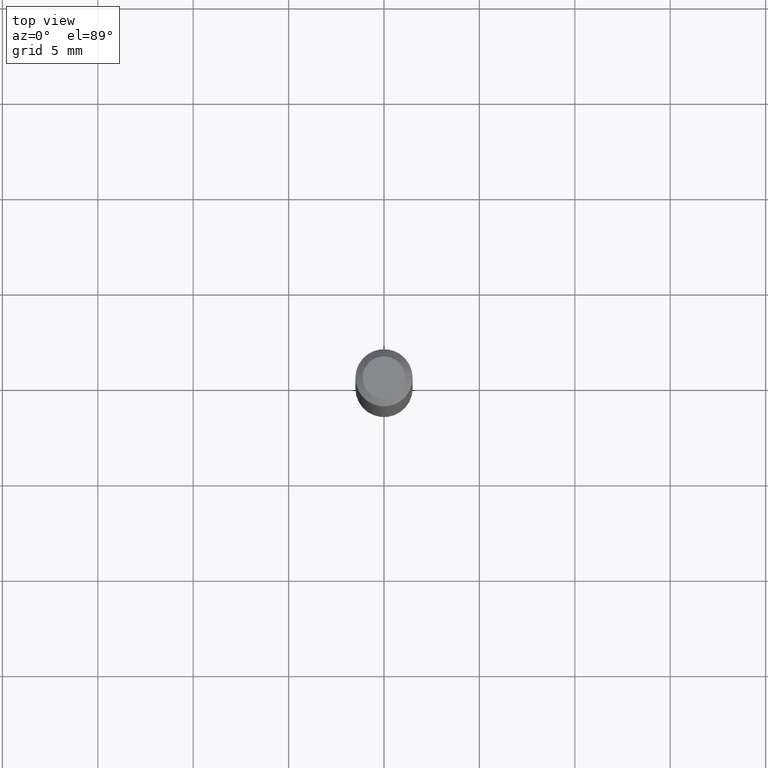
[diagram: clean part render]
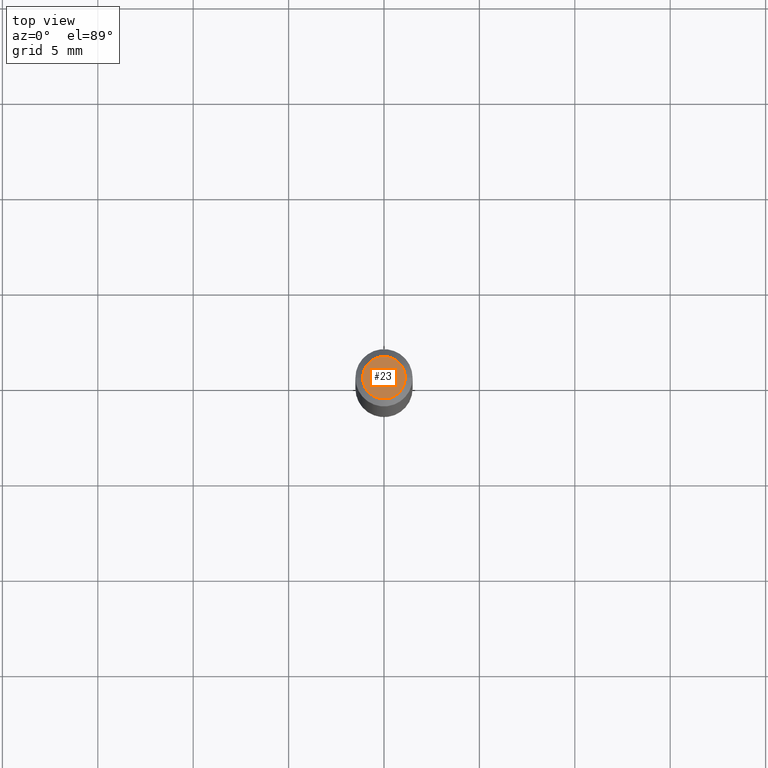
[diagram: same view with one face highlighted and labeled with its STEP entity id]
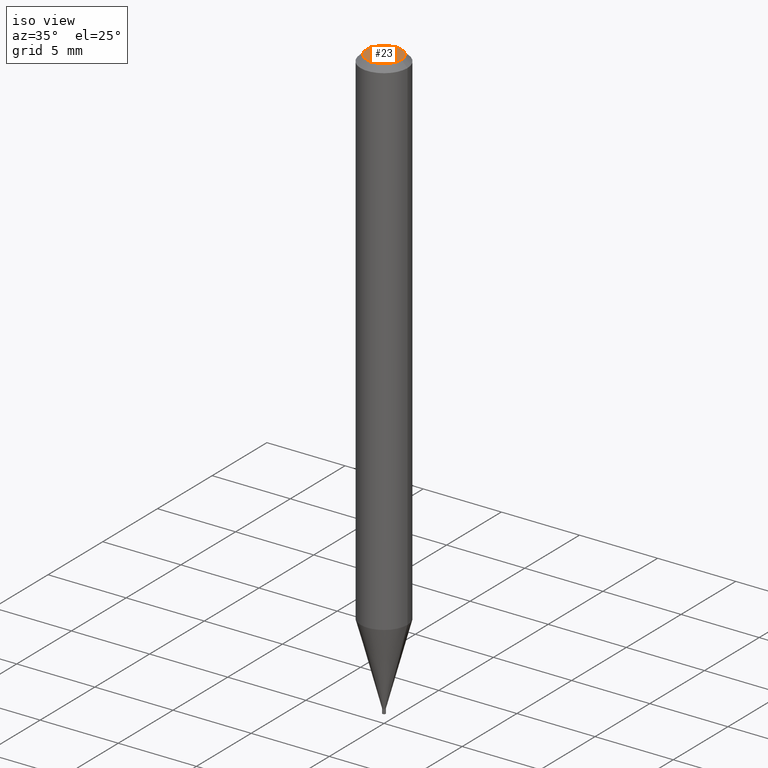
[diagram: same view with one face highlighted and labeled with its STEP entity id]
A machine part, top view. The second image highlights one B-rep face of the part: STEP entity #23.
A second angle (iso view) of the same face is appended — the face is thin or edge-on in the first view.
In plain terms, the highlighted planar face has unit normal (0, -0, -1).
Its self-contained STEP definition (entity closure, byte-faithful):
#20 = EDGE_LOOP ( 'NONE', ( #415, #358 ) ) ;
#23 = ADVANCED_FACE ( 'NONE', ( #320 ), #149, .F. ) ;
#46 = VERTEX_POINT ( 'NONE', #194 ) ;
#68 = EDGE_CURVE ( 'NONE', #46, #195, #226, .T. ) ;
#108 = DIRECTION ( 'NONE',  ( 1.000000000000000000, -6.982962677686265922E-15, 4.957392940945096353E-29 ) ) ;
#116 = DIRECTION ( 'NONE',  ( -2.445468806185136597E-29, 3.491481338843145583E-15, 1.000000000000000000 ) ) ;
#130 = DIRECTION ( 'NONE',  ( 2.438088387897960049E-29, -3.491481338843145188E-15, -1.000000000000000000 ) ) ;
#149 = PLANE ( 'NONE',  #286 ) ;
#159 = CIRCLE ( 'NONE', #279, 0.04404999999999999888 ) ;
#188 = DIRECTION ( 'NONE',  ( -2.445468806185136597E-29, 3.491481338843145583E-15, 1.000000000000000000 ) ) ;
#191 = CARTESIAN_POINT ( 'NONE',  ( -0.04404999999999999888, 3.337856159934044986E-16, 6.005310506687738188E-16 ) ) ;
#194 = CARTESIAN_POINT ( 'NONE',  ( 0.04404999999999999888, -3.798447818264450218E-16, 6.005310506687784534E-16 ) ) ;
#195 = VERTEX_POINT ( 'NONE', #191 ) ;
#199 = EDGE_CURVE ( 'NONE', #195, #46, #159, .T. ) ;
#226 = CIRCLE ( 'NONE', #434, 0.04404999999999999888 ) ;
#261 = DIRECTION ( 'NONE',  ( -1.000000000000000000, 6.982962677686265922E-15, -4.876176775795935793E-29 ) ) ;
#279 = AXIS2_PLACEMENT_3D ( 'NONE', #309, #188, #336 ) ;
#286 = AXIS2_PLACEMENT_3D ( 'NONE', #307, #130, #261 ) ;
#307 = CARTESIAN_POINT ( 'NONE',  ( 3.075995059520799729E-16, 0.04404999999999999888, 1.464657723583474653E-16 ) ) ;
#309 = CARTESIAN_POINT ( 'NONE',  ( -1.468579951556077338E-44, 2.096742956805899036E-30, 6.005310506687760868E-16 ) ) ;
#320 = FACE_OUTER_BOUND ( 'NONE', #20, .T. ) ;
#336 = DIRECTION ( 'NONE',  ( 1.000000000000000000, -6.982962677686265922E-15, 4.957392940945096353E-29 ) ) ;
#358 = ORIENTED_EDGE ( 'NONE', *, *, #68, .T. ) ;
#386 = CARTESIAN_POINT ( 'NONE',  ( -1.468579951556077338E-44, 2.096742956805899036E-30, 6.005310506687760868E-16 ) ) ;
#415 = ORIENTED_EDGE ( 'NONE', *, *, #199, .T. ) ;
#434 = AXIS2_PLACEMENT_3D ( 'NONE', #386, #116, #108 ) ;